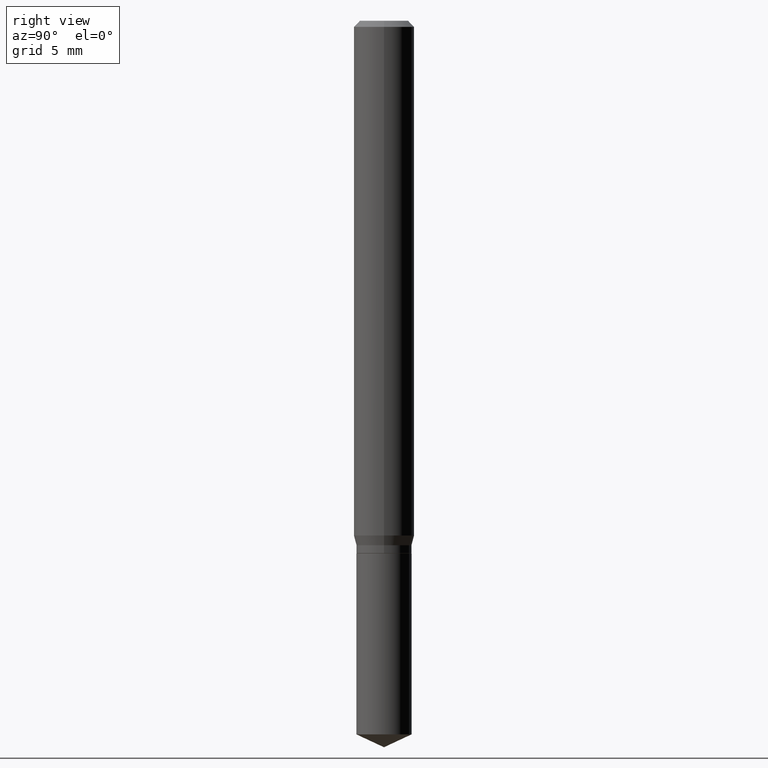
[diagram: clean part render]
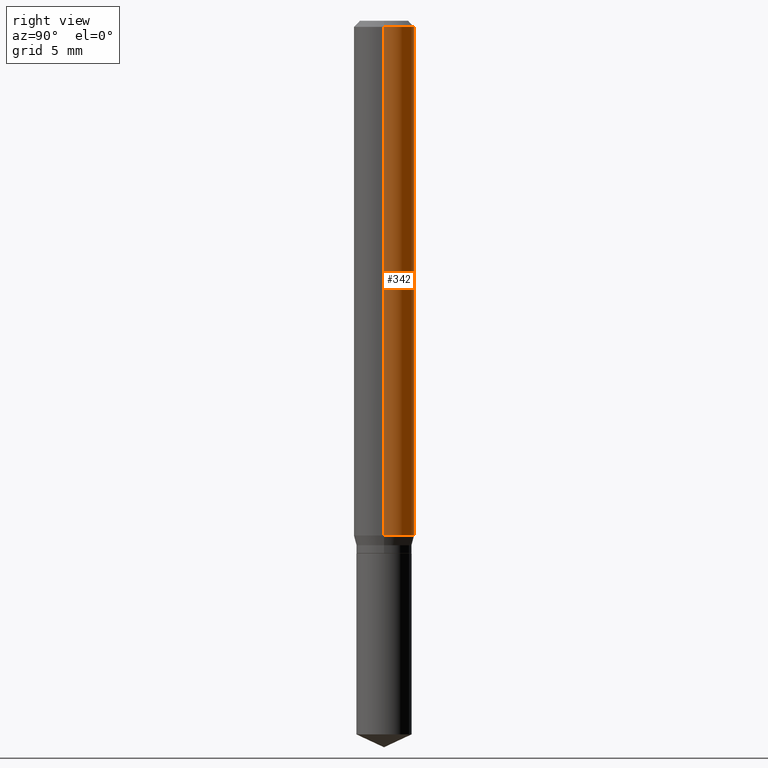
[diagram: same view with one face highlighted and labeled with its STEP entity id]
A machine part, right view. The second image highlights one B-rep face of the part: STEP entity #342.
In plain terms, the highlighted cylindrical surface (edge-blend (fillet) strip) has radius 1.5875 mm, axis along (-0, 0, 1).
Its self-contained STEP definition (entity closure, byte-faithful):
#9 = CARTESIAN_POINT ( 'NONE',  ( -0.06250000000000012490, -3.266471848931874513E-15, -1.062746925639127760 ) ) ;
#17 = CIRCLE ( 'NONE', #413, 0.06250000000000000000 ) ;
#22 = CARTESIAN_POINT ( 'NONE',  ( 3.056836007731440977E-31, -4.364351673553961068E-17, -0.01250000000000008223 ) ) ;
#59 = FACE_OUTER_BOUND ( 'NONE', #222, .T. ) ;
#79 = LINE ( 'NONE', #460, #162 ) ;
#80 = DIRECTION ( 'NONE',  ( -2.445468806185136877E-29, 3.491481338843145188E-15, 1.000000000000000000 ) ) ;
#87 = ORIENTED_EDGE ( 'NONE', *, *, #359, .T. ) ;
#88 = CYLINDRICAL_SURFACE ( 'NONE', #426, 0.06250000000000006939 ) ;
#97 = VERTEX_POINT ( 'NONE', #349 ) ;
#122 = AXIS2_PLACEMENT_3D ( 'NONE', #210, #363, #140 ) ;
#127 = DIRECTION ( 'NONE',  ( -2.445468806185136597E-29, 3.491481338843145583E-15, 1.000000000000000000 ) ) ;
#138 = CARTESIAN_POINT ( 'NONE',  ( 0.000000000000000000, 0.000000000000000000, 0.000000000000000000 ) ) ;
#140 = DIRECTION ( 'NONE',  ( 1.000000000000000000, -6.982962677686264344E-15, 0.000000000000000000 ) ) ;
#162 = VECTOR ( 'NONE', #80, 39.37007874015748143 ) ;
#172 = ORIENTED_EDGE ( 'NONE', *, *, #422, .T. ) ;
#180 = DIRECTION ( 'NONE',  ( -2.445468806185136597E-29, 3.491481338843145583E-15, 1.000000000000000000 ) ) ;
#185 = ORIENTED_EDGE ( 'NONE', *, *, #408, .F. ) ;
#204 = VECTOR ( 'NONE', #483, 39.37007874015748143 ) ;
#210 = CARTESIAN_POINT ( 'NONE',  ( 2.598914455519641548E-29, -3.710561058781938706E-15, -1.062746925639127760 ) ) ;
#222 = EDGE_LOOP ( 'NONE', ( #172, #87, #185, #290 ) ) ;
#273 = EDGE_CURVE ( 'NONE', #97, #474, #79, .T. ) ;
#290 = ORIENTED_EDGE ( 'NONE', *, *, #273, .F. ) ;
#298 = VERTEX_POINT ( 'NONE', #9 ) ;
#324 = CIRCLE ( 'NONE', #122, 0.06250000000000012490 ) ;
#326 = VERTEX_POINT ( 'NONE', #470 ) ;
#342 = ADVANCED_FACE ( 'NONE', ( #59 ), #88, .T. ) ;
#349 = CARTESIAN_POINT ( 'NONE',  ( 0.06250000000000012490, -4.146996226137331165E-15, -1.062746925639127760 ) ) ;
#359 = EDGE_CURVE ( 'NONE', #298, #326, #368, .T. ) ;
#363 = DIRECTION ( 'NONE',  ( -2.445468806185136597E-29, 3.491481338843145583E-15, 1.000000000000000000 ) ) ;
#368 = LINE ( 'NONE', #437, #204 ) ;
#406 = DIRECTION ( 'NONE',  ( 1.000000000000000000, -6.982962677686266711E-15, 4.876176775795935793E-29 ) ) ;
#408 = EDGE_CURVE ( 'NONE', #474, #326, #17, .T. ) ;
#409 = DIRECTION ( 'NONE',  ( 1.000000000000000000, -6.982962677686266711E-15, 0.000000000000000000 ) ) ;
#413 = AXIS2_PLACEMENT_3D ( 'NONE', #22, #180, #409 ) ;
#414 = CARTESIAN_POINT ( 'NONE',  ( 0.06250000000000000000, -4.800786840909312308E-16, -0.01250000000000008223 ) ) ;
#422 = EDGE_CURVE ( 'NONE', #97, #298, #324, .T. ) ;
#426 = AXIS2_PLACEMENT_3D ( 'NONE', #138, #127, #406 ) ;
#437 = CARTESIAN_POINT ( 'NONE',  ( -0.06250000000000006939, 4.440892098500631092E-16, -3.074334431409319267E-30 ) ) ;
#460 = CARTESIAN_POINT ( 'NONE',  ( 0.06250000000000006939, -4.364351673553921624E-16, 3.047610484872463374E-30 ) ) ;
#470 = CARTESIAN_POINT ( 'NONE',  ( -0.06250000000000000000, -1.433013077908675137E-15, -0.01250000000000008223 ) ) ;
#474 = VERTEX_POINT ( 'NONE', #414 ) ;
#483 = DIRECTION ( 'NONE',  ( -2.445468806185136877E-29, 3.491481338843145188E-15, 1.000000000000000000 ) ) ;